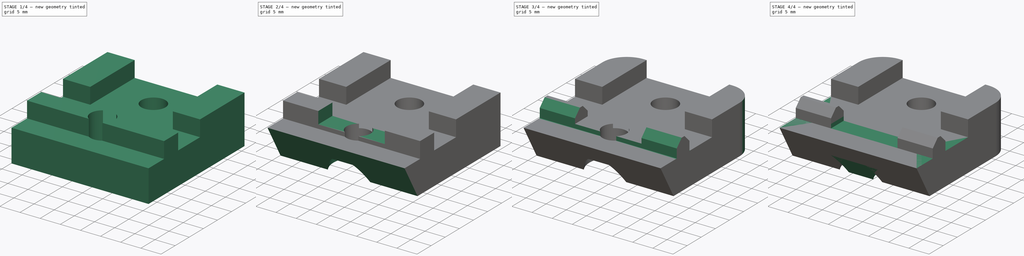
[diagram: build sequence overview — one tinted view per stage of 4, left to right]
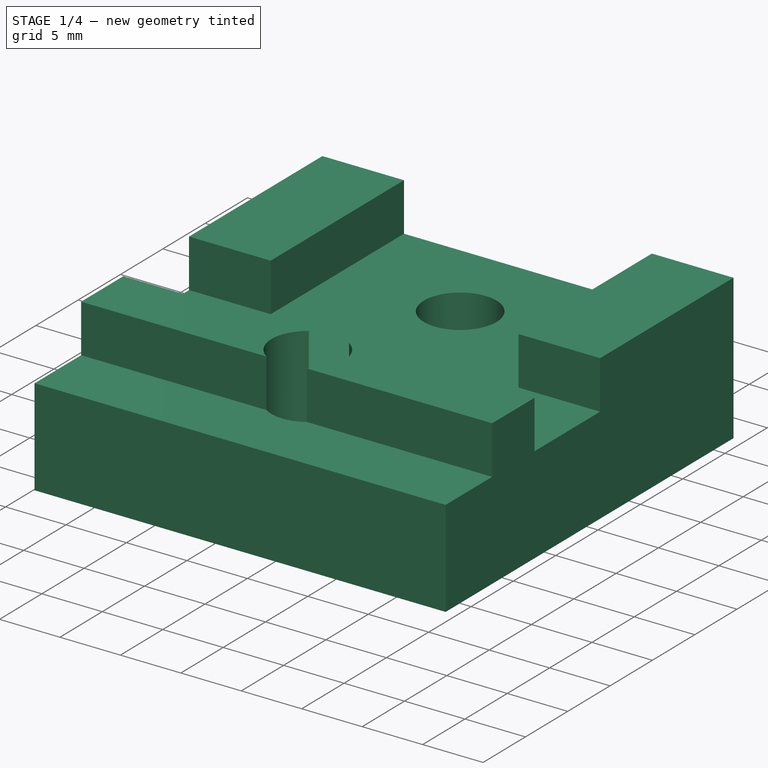
[diagram: stage 1 of 4 — iso view after this stage's code; geometry added in this stage tinted green]
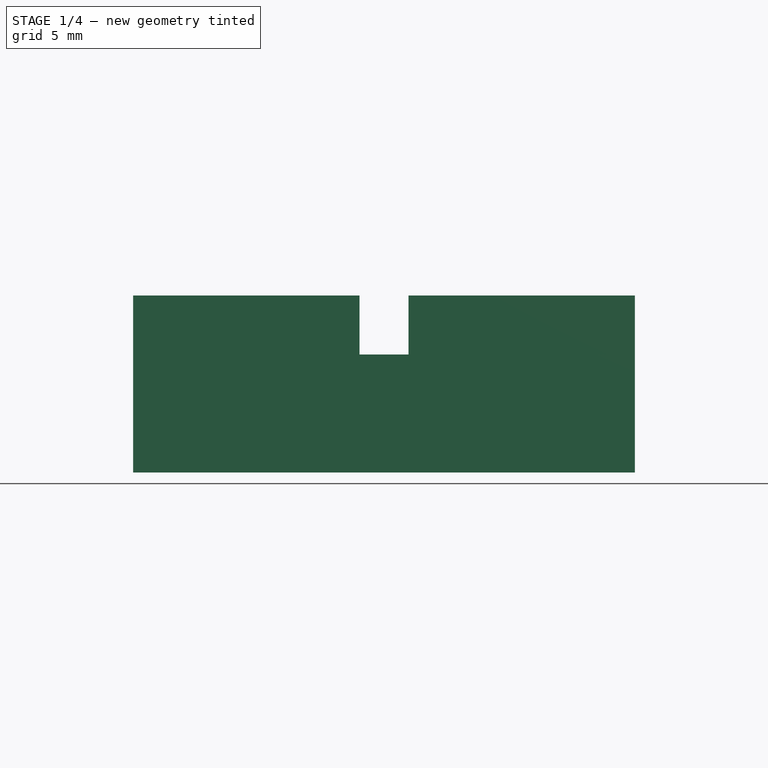
[diagram: stage 1 of 4 — front view after this stage's code; geometry added in this stage tinted green]
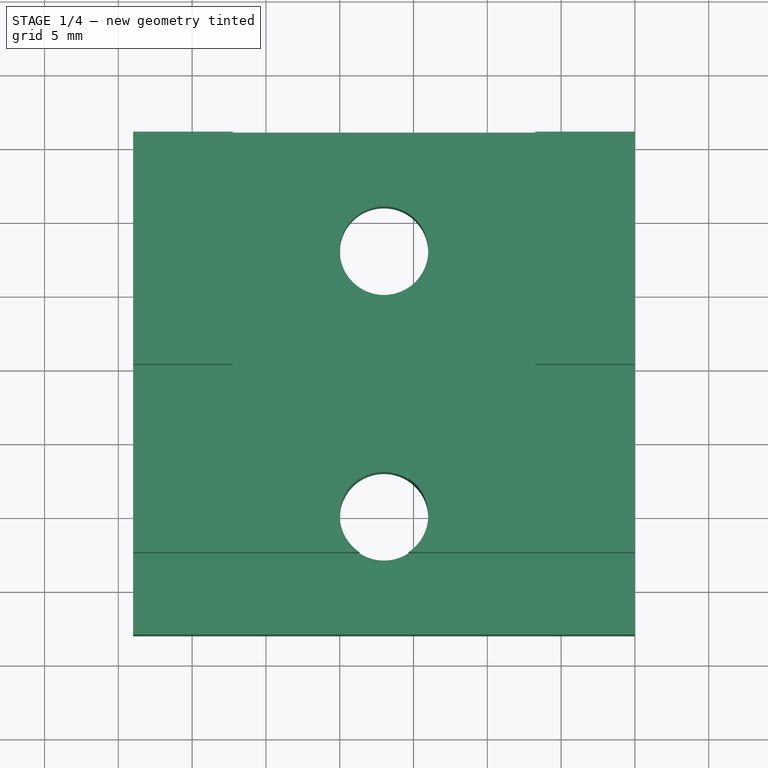
[diagram: stage 1 of 4 — top view after this stage's code; geometry added in this stage tinted green]
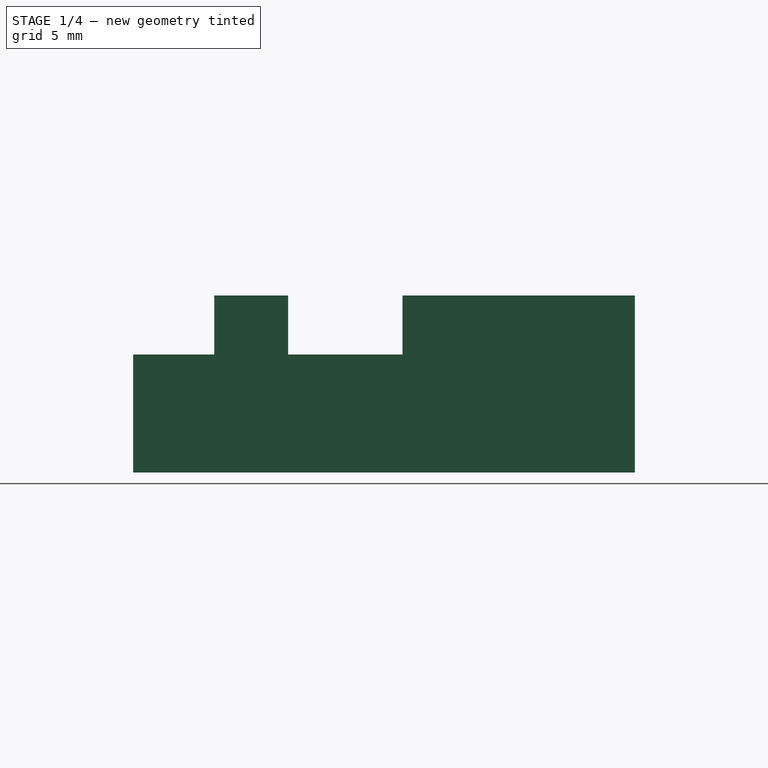
[diagram: stage 1 of 4 — right view after this stage's code; geometry added in this stage tinted green]
FCSTD DOCUMENT  (FreeCAD 0.17R13662 (Git))
Label: bed_mount_table_v1.1
License: CreativeCommons Attribution-ShareAlike
LicenseURL: http://creativecommons.org/licenses/by-sa/4.0/
objects: PartDesign::Pocket×9, Sketcher::SketchObject×8, Part::FeaturePython×1, PartDesign::Pad×1, PartDesign::Chamfer×1, PartDesign::Fillet×1, PartDesign::Body×1, Part::Feature×1
note: 33 computed .brp shape members not serialized (recipe doc carries the construction recipe); baked Part::Feature solids carry a one-line shape summary decoded from their .brp

FEATURE [Sketcher::SketchObject] Sketch
  MapMode = 5
  Support = -> [XY_Plane]
  sketch-geometry (4):
    g0: LineSegment StartX=0 StartY=2 StartZ=0 EndX=-34 EndY=2 EndZ=0
    g1: LineSegment StartX=-34 StartY=2 StartZ=0 EndX=-34 EndY=36 EndZ=0
    g2: LineSegment StartX=-34 StartY=36 StartZ=0 EndX=0 EndY=36 EndZ=0
    g3: LineSegment StartX=0 StartY=36 StartZ=0 EndX=0 EndY=2 EndZ=0
  constraints (12):
    c: Coincident(g0,g1)
    c: Coincident(g1,g2)
    c: Coincident(g2,g3)
    c: Coincident(g3,g0)
    c: Horizontal(g0)
    c: Horizontal(g2)
    c: Vertical(g1)
    c: Vertical(g3)
    c: PointOnObject(g0,g-2)
    c: DistanceY(g0) = 2
    c: DistanceY(g3,g3) = 34
    c: DistanceX(g2,g2) = 34
FEATURE [PartDesign::Pad] Pad
  Length = 12
  Length2 = 100
  Profile = -> Sketch
  Type = 0
FEATURE [Sketcher::SketchObject] Sketch001
  ExternalGeometry = -> [Pad]
  MapMode = 5
  Placement = pos=(0,0,12) rot=(0,0,1;0rad)
  Support = -> [Pad]
  sketch-geometry (14):
    g0: LineSegment StartX=-34 StartY=12.5 StartZ=0 EndX=0 EndY=12.5 EndZ=0
    g1: LineSegment [constr] StartX=0 StartY=12.5 StartZ=0 EndX=0 EndY=7.5 EndZ=0
    g2: LineSegment StartX=0 StartY=7.5 StartZ=0 EndX=-34 EndY=7.5 EndZ=0
    g3: LineSegment [constr] StartX=-34 StartY=7.5 StartZ=0 EndX=-34 EndY=12.5 EndZ=0
    g4: LineSegment StartX=-34 StartY=12.5 StartZ=0 EndX=-34 EndY=20.25 EndZ=0
    g5: LineSegment StartX=-34 StartY=20.25 StartZ=0 EndX=-27.25 EndY=20.25 EndZ=0
    g6: LineSegment StartX=-27.25 StartY=20.25 StartZ=0 EndX=-27.25 EndY=36 EndZ=0
    g7: LineSegment StartX=-27.25 StartY=36 StartZ=0 EndX=-6.75 EndY=36 EndZ=0
    g8: LineSegment StartX=-6.75 StartY=36 StartZ=0 EndX=-6.75 EndY=20.25 EndZ=0
    g9: LineSegment StartX=-6.75 StartY=20.25 StartZ=0 EndX=0 EndY=20.25 EndZ=0
    g10: LineSegment StartX=0 StartY=20.25 StartZ=0 EndX=0 EndY=12.5 EndZ=0
    g11: LineSegment StartX=0 StartY=7.5 StartZ=0 EndX=0 EndY=2 EndZ=0
    g12: LineSegment StartX=0 StartY=2 StartZ=0 EndX=-34 EndY=2 EndZ=0
    g13: LineSegment StartX=-34 StartY=2 StartZ=0 EndX=-34 EndY=7.5 EndZ=0
  constraints (40):
    c: Coincident(g0,g1)
    c: Coincident(g1,g2)
    c: Coincident(g2,g3)
    c: Coincident(g3,g0)
    c: Horizontal(g0)
    c: Horizontal(g2)
    c: Vertical(g1)
    c: Vertical(g3)
    c: DistanceY(g1,g1) = 5
    c: PointOnObject(g1,g-2)
    c: DistanceY(g1) = 7.5
    c: DistanceX(g0,g0) = 34
    c: Coincident(g4,g5)
    c: Coincident(g5,g6)
    c: Coincident(g6,g7)
    c: Coincident(g7,g8)
    c: Coincident(g8,g9)
    c: Coincident(g9,g10)
    c: Coincident(g11,g12)
    c: Coincident(g12,g13)
    c: Coincident(g2,g13)
    c: Vertical(g13)
    c: Vertical(g11)
    c: Vertical(g10)
    c: Vertical(g4)
    c: Horizontal(g12)
    c: Horizontal(g7)
    c: Horizontal(g5)
    c: Horizontal(g9)
    c: Vertical(g8)
    c: Vertical(g6)
    c: Coincident(g12,g-3)
    c: Coincident(g0,g4)
    c: DistanceY(g4,g4) = 7.75
    c: Equal(g5,g9)
    c: Coincident(g0,g10)
    c: DistanceX(g5,g5) = 6.75
    c: PointOnObject(g6,g-4)
    c: Equal(g8,g6)
    c: Coincident(g1,g11)
FEATURE [PartDesign::Pocket] Pocket
  BaseFeature = -> Pad
  Length = 4
  Length2 = 100
  Profile = -> Sketch001
  Type = 0
FEATURE [Sketcher::SketchObject] Sketch002
  MapMode = 5
  Placement = pos=(0,0,12) rot=(0,0,1;0rad)
  Support = -> [Pocket]
  sketch-geometry (2):
    g0: Circle CenterX=-17 CenterY=28 CenterZ=0 NormalX=0 NormalY=0 NormalZ=1 AngleXU=0 Radius=3
    g1: Circle CenterX=-17 CenterY=10 CenterZ=0 NormalX=0 NormalY=0 NormalZ=1 AngleXU=0 Radius=3
  constraints (6):
    c: DistanceX(g0) = -17
    c: DistanceY(g0) = 28
    c: Radius(g0) = 3
    c: DistanceX(g1,g0) = 0
    c: DistanceY(g1,g0) = 18
    c: Equal(g1,g0)
FEATURE [PartDesign::Pocket] Pocket001
  BaseFeature = -> Pocket
  Length = 5
  Length2 = 100
  Profile = -> Sketch002
  Type = 1
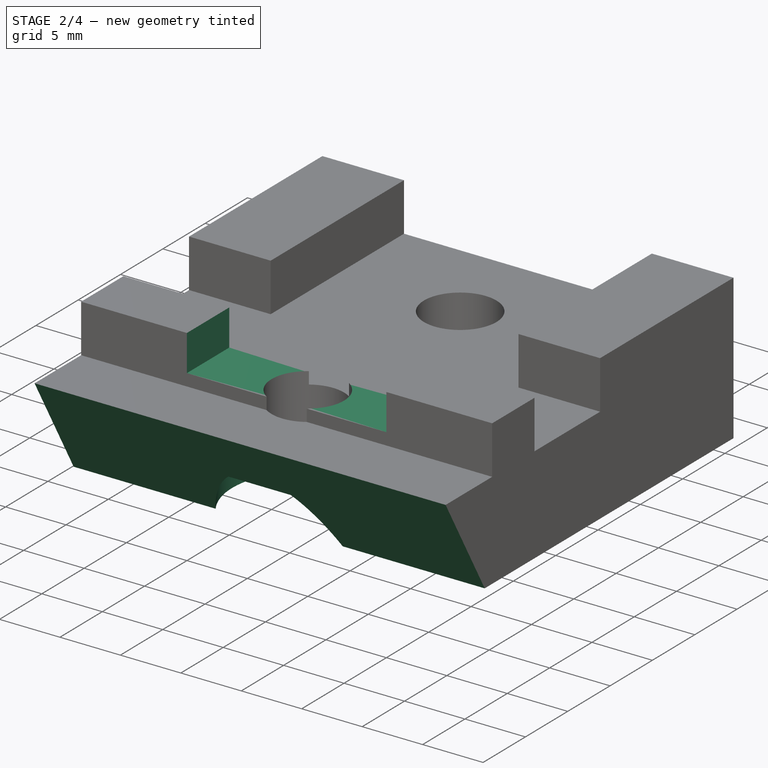
[diagram: stage 2 of 4 — iso view after this stage's code; geometry added in this stage tinted green]
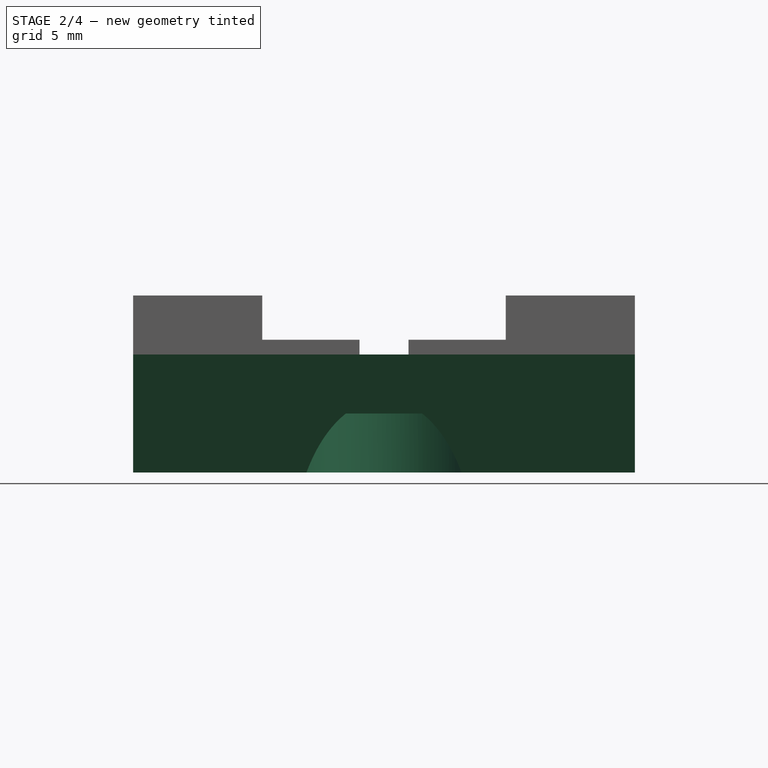
[diagram: stage 2 of 4 — front view after this stage's code; geometry added in this stage tinted green]
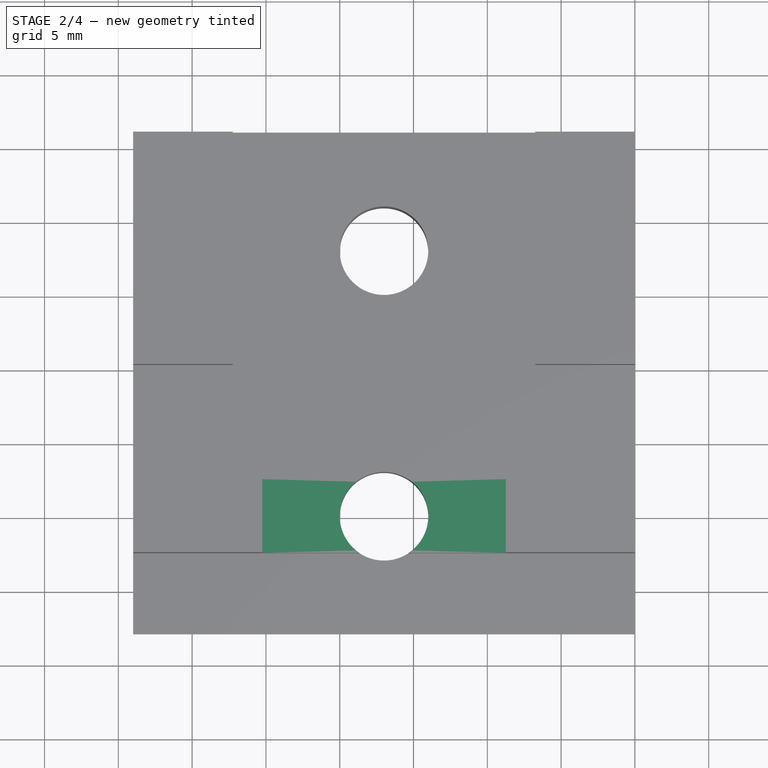
[diagram: stage 2 of 4 — top view after this stage's code; geometry added in this stage tinted green]
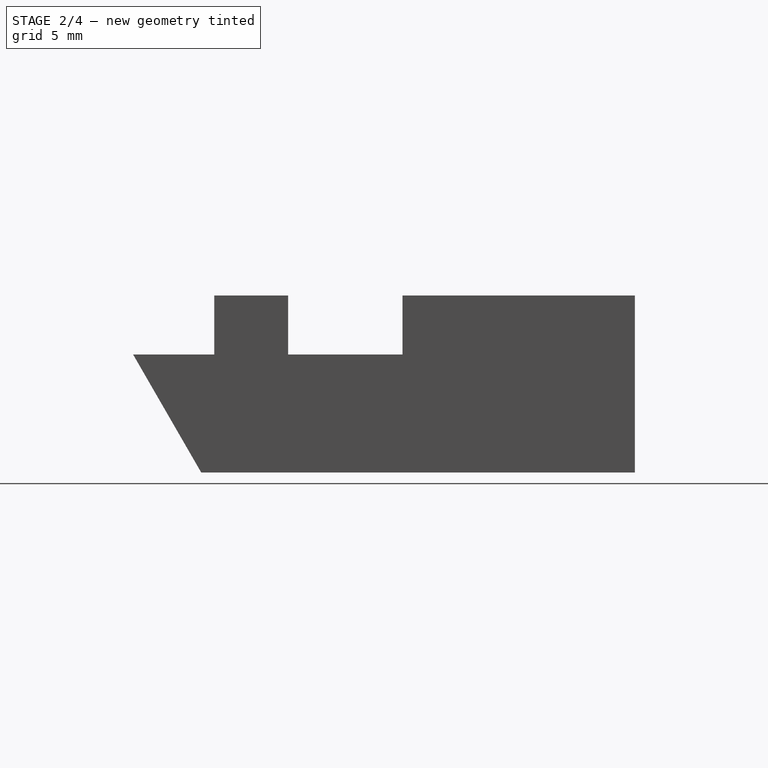
[diagram: stage 2 of 4 — right view after this stage's code; geometry added in this stage tinted green]
FEATURE [Sketcher::SketchObject] Sketch003
  ExternalGeometry = -> [Pocket001]
  MapMode = 5
  Placement = pos=(0,0,0) rot=(1,0,0;3.14159rad)
  Support = -> [Pocket001]
  sketch-geometry (1):
    g0: Circle CenterX=-17 CenterY=-10 CenterZ=0 NormalX=0 NormalY=0 NormalZ=1 AngleXU=0 Radius=6.25
  constraints (2):
    c: Coincident(g0,g-3)
    c: Radius(g0) = 6.25
FEATURE [PartDesign::Pocket] Pocket002
  BaseFeature = -> Pocket001
  Length = 4
  Length2 = 100
  Profile = -> Sketch003
  Type = 0
FEATURE [Sketcher::SketchObject] Sketch004
  ExternalGeometry = -> [Pocket002]
  MapMode = 5
  Placement = pos=(0,0,0) rot=(0.57735,0.57735,0.57735;2.0944rad)
  Support = -> [Pocket002]
  sketch-geometry (3):
    g0: LineSegment StartX=2 StartY=8 StartZ=0 EndX=6.6188 EndY=0 EndZ=0
    g1: LineSegment StartX=6.6188 StartY=0 StartZ=0 EndX=2 EndY=0 EndZ=0
    g2: LineSegment StartX=2 StartY=0 StartZ=0 EndX=2 EndY=8 EndZ=0
  constraints (7):
    c: Coincident(g0,g1)
    c: Coincident(g1,g2)
    c: Coincident(g0,g2)
    c: Coincident(g0,g-3)
    c: Coincident(g1,g-4)
    c: Horizontal(g1)
    c: Angle(g0) = -1.0472
FEATURE [PartDesign::Pocket] Pocket003
  BaseFeature = -> Pocket002
  Length = 5
  Length2 = 100
  Profile = -> Sketch004
  Type = 1
FEATURE [Sketcher::SketchObject] Sketch005
  ExternalGeometry = -> [Pocket003]
  MapMode = 5
  Placement = pos=(0,0,12) rot=(0,0,1;0rad)
  Support = -> [Pocket003]
  sketch-geometry (4):
    g0: LineSegment StartX=-25.25 StartY=12.5 StartZ=0 EndX=-8.75 EndY=12.5 EndZ=0
    g1: LineSegment StartX=-8.75 StartY=12.5 StartZ=0 EndX=-8.75 EndY=7.5 EndZ=0
    g2: LineSegment StartX=-8.75 StartY=7.5 StartZ=0 EndX=-25.25 EndY=7.5 EndZ=0
    g3: LineSegment StartX=-25.25 StartY=7.5 StartZ=0 EndX=-25.25 EndY=12.5 EndZ=0
  constraints (12):
    c: Coincident(g0,g1)
    c: Coincident(g1,g2)
    c: Coincident(g2,g3)
    c: Coincident(g3,g0)
    c: Horizontal(g0)
    c: Horizontal(g2)
    c: Vertical(g1)
    c: Vertical(g3)
    c: PointOnObject(g1,g-5)
    c: PointOnObject(g0,g-3)
    c: DistanceX(g0,g0) = 16.5
    c: DistanceX(g-7,g0) = 8.25
FEATURE [PartDesign::Pocket] Pocket004
  BaseFeature = -> Pocket003
  Length = 3
  Length2 = 100
  Profile = -> Sketch005
  Type = 0
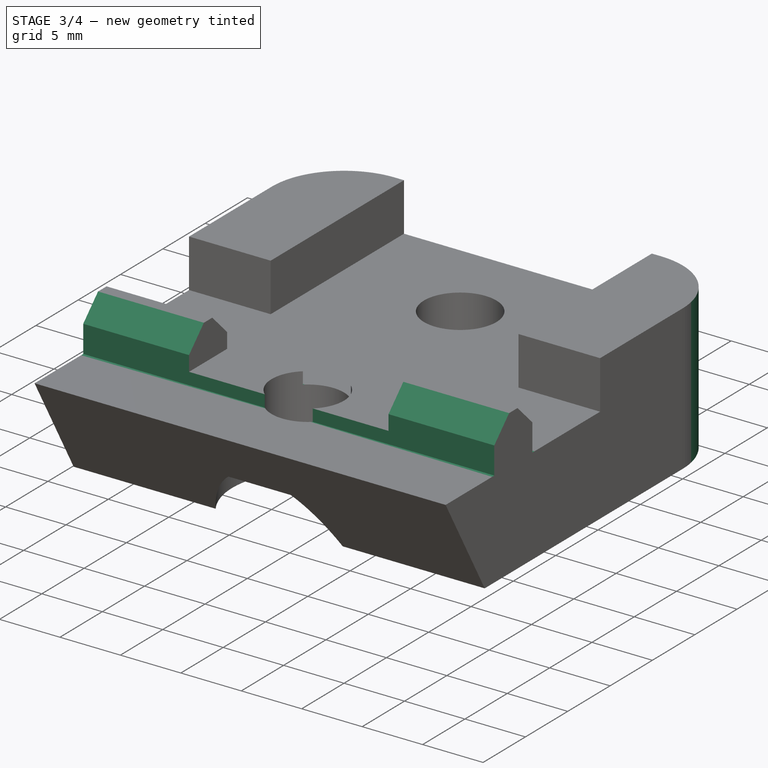
[diagram: stage 3 of 4 — iso view after this stage's code; geometry added in this stage tinted green]
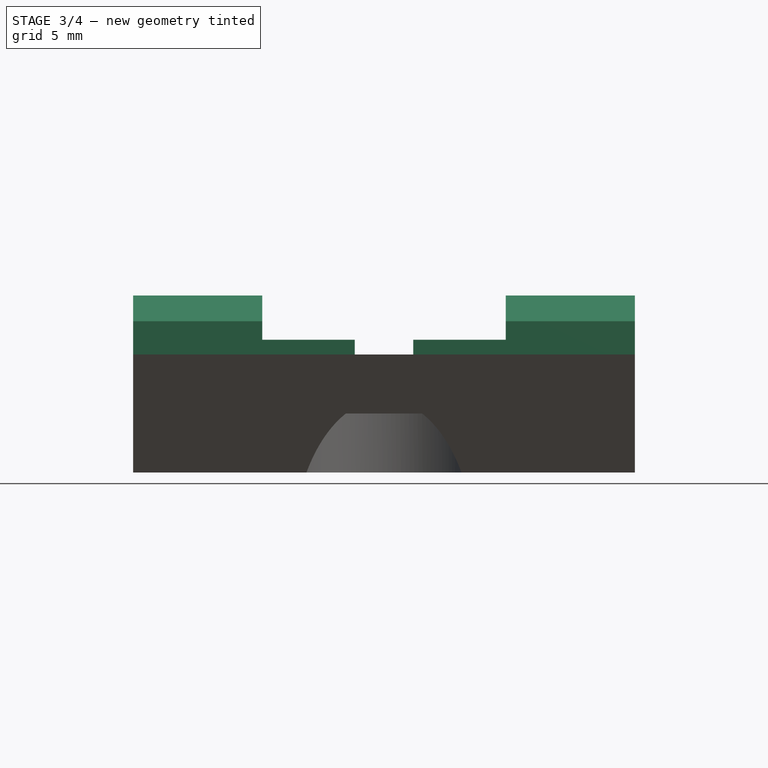
[diagram: stage 3 of 4 — front view after this stage's code; geometry added in this stage tinted green]
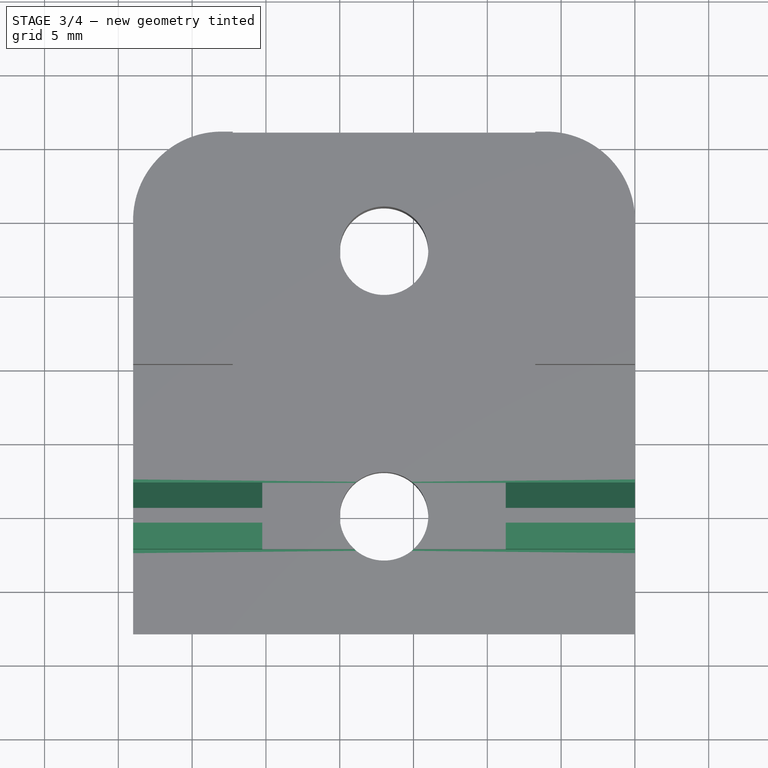
[diagram: stage 3 of 4 — top view after this stage's code; geometry added in this stage tinted green]
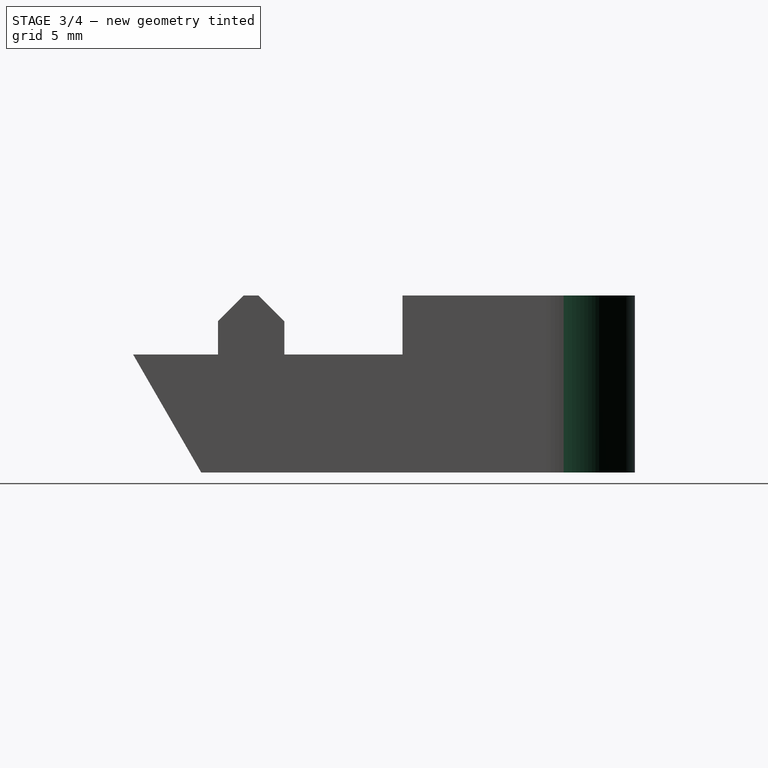
[diagram: stage 3 of 4 — right view after this stage's code; geometry added in this stage tinted green]
FEATURE [PartDesign::Chamfer] Chamfer
  Base = -> Pocket004 [Edge16,Edge51,Edge43,Edge73]
  BaseFeature = -> Pocket004
  Size = 2
FEATURE [PartDesign::Fillet] Fillet
  Base = -> Chamfer [Edge9,Edge48]
  BaseFeature = -> Chamfer
  Radius = 6
FEATURE [Sketcher::SketchObject] Sketch006
  ExternalGeometry = -> [Fillet]
  MapMode = 5
  Placement = pos=(0,7.5,0) rot=(1,0,0;1.5708rad)
  Support = -> [Fillet]
  sketch-geometry (4):
    g0: LineSegment StartX=-34 StartY=8 StartZ=0 EndX=0 EndY=8 EndZ=0
    g1: LineSegment StartX=0 StartY=8 StartZ=0 EndX=0 EndY=12 EndZ=0
    g2: LineSegment StartX=0 StartY=12 StartZ=0 EndX=-34 EndY=12 EndZ=0
    g3: LineSegment StartX=-34 StartY=12 StartZ=0 EndX=-34 EndY=8 EndZ=0
  constraints (11):
    c: Coincident(g0,g1)
    c: Coincident(g1,g2)
    c: Coincident(g2,g3)
    c: Coincident(g3,g0)
    c: Horizontal(g0)
    c: Horizontal(g2)
    c: Vertical(g1)
    c: Vertical(g3)
    c: Coincident(g0,g-3)
    c: Coincident(g-4,g0)
    c: Coincident(g1,g-5)
FEATURE [PartDesign::Pocket] Pocket005
  BaseFeature = -> Fillet
  Length = 0.25
  Length2 = 100
  Profile = -> Sketch006
  Type = 0
FEATURE [Sketcher::SketchObject] Sketch007
  ExternalGeometry = -> [Pocket005]
  MapMode = 5
  Placement = pos=(0,12.5,0) rot=(0,0.707107,0.707107;3.14159rad)
  Support = -> [Pocket005]
  sketch-geometry (4):
    g0: LineSegment StartX=0 StartY=8 StartZ=0 EndX=34 EndY=8 EndZ=0
    g1: LineSegment StartX=34 StartY=8 StartZ=0 EndX=34 EndY=12 EndZ=0
    g2: LineSegment StartX=34 StartY=12 StartZ=0 EndX=0 EndY=12 EndZ=0
    g3: LineSegment StartX=0 StartY=12 StartZ=0 EndX=0 EndY=8 EndZ=0
  constraints (11):
    c: Coincident(g0,g1)
    c: Coincident(g1,g2)
    c: Coincident(g2,g3)
    c: Coincident(g3,g0)
    c: Horizontal(g0)
    c: Horizontal(g2)
    c: Vertical(g1)
    c: Vertical(g3)
    c: Coincident(g0,g-3)
    c: Coincident(g-5,g0)
    c: Coincident(g-6,g1)
FEATURE [PartDesign::Pocket] Pocket006
  BaseFeature = -> Pocket005
  Length = 0.25
  Length2 = 100
  Profile = -> Sketch007
  Type = 0
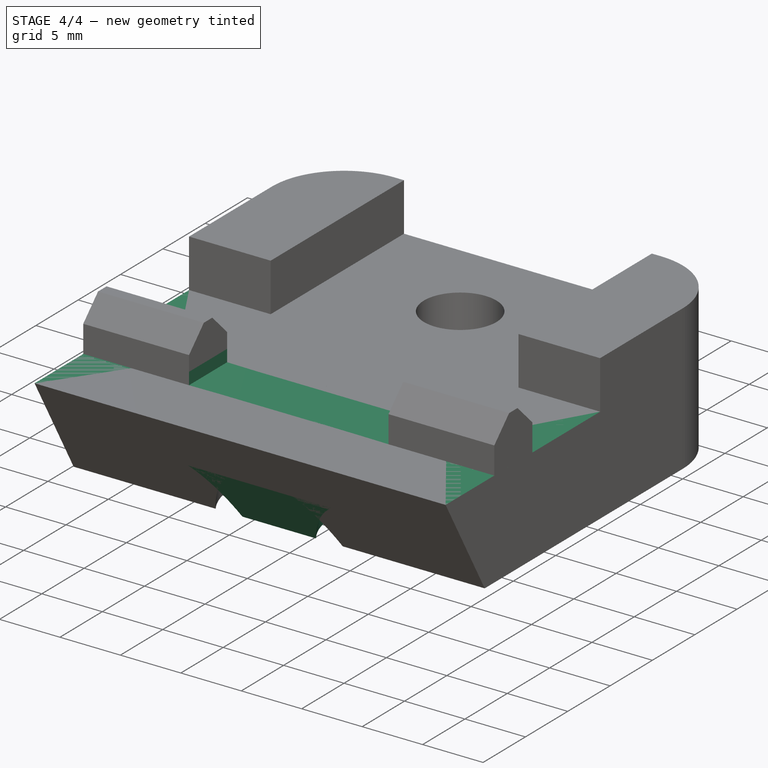
[diagram: stage 4 of 4 — iso view after this stage's code; geometry added in this stage tinted green]
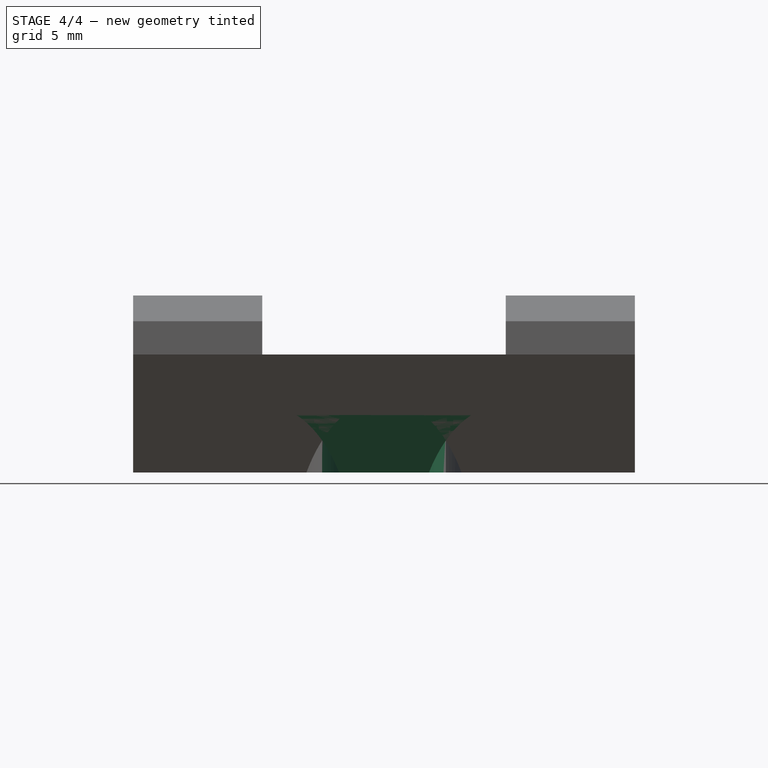
[diagram: stage 4 of 4 — front view after this stage's code; geometry added in this stage tinted green]
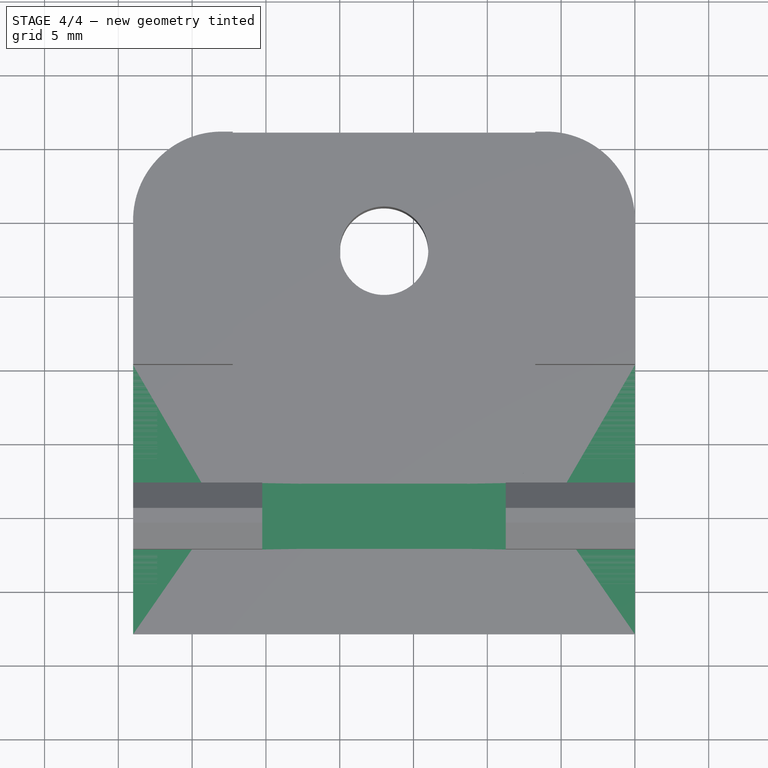
[diagram: stage 4 of 4 — top view after this stage's code; geometry added in this stage tinted green]
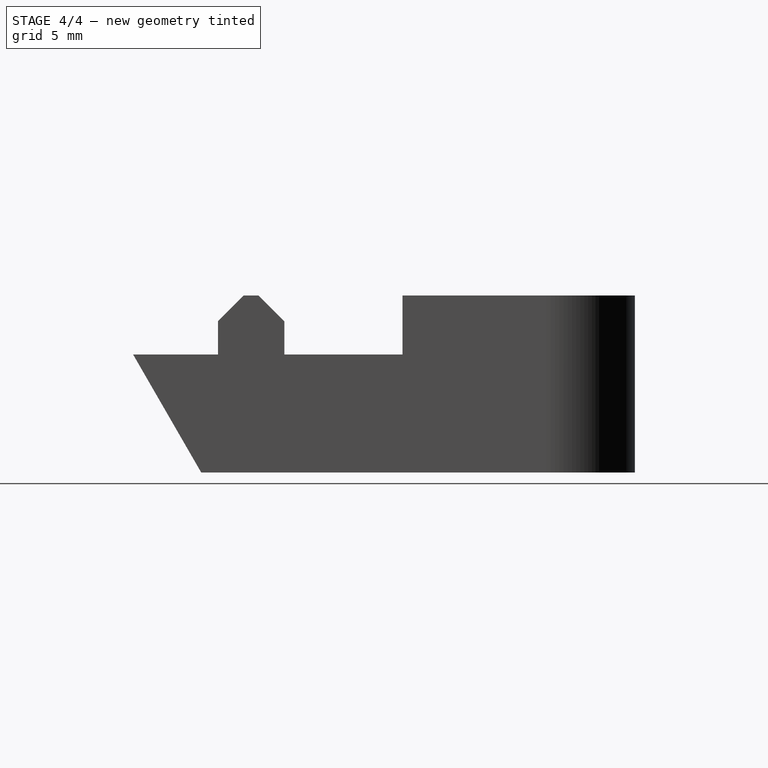
[diagram: stage 4 of 4 — right view after this stage's code; geometry added in this stage tinted green]
FEATURE [Part::FeaturePython] bed_mount_table_01  # a2plus imported part (geometry in sourceFile) (typed FeaturePython)
  Placement = pos=(0,0,4) rot=(0,0,1;0rad)
  fixedPosition = true
  sourceFile = <userpath>/Projects/taz-quiver/Production_parts/Printed_parts/Y/Bed_mount_table/bed_mount_table.fcstd
  timeLastImport = 1.53356e+09
  updateColors = true
FEATURE [PartDesign::Pocket] Pocket007
  BaseFeature = -> Pocket006
  Length = 1
  Length2 = 100
  Profile = -> Pocket006 [Face37]
  Type = 0
FEATURE [PartDesign::Pocket] Pocket008
  BaseFeature = -> Pocket007
  Length = 1
  Length2 = 100
  Profile = -> Pocket007 [Face25]
  Type = 0
FEATURE [PartDesign::Body] Body
  Group = -> [Sketch,Pad,Sketch001,Pocket,Sketch002,Pocket001,Sketch003,Pocket002,Sketch004,Pocket003,Sketch005,Pocket004,Chamfer,Fillet,Sketch006,Pocket005,Sketch007,Pocket006,Pocket007,Pocket008]
  Origin = -> Origin
  Tip = -> Pocket008
FEATURE [Part::Feature] Pocket008001  label="Pocket009"
  shape: bbox 34 x 34 x 12 mm, 30 faces (baked)
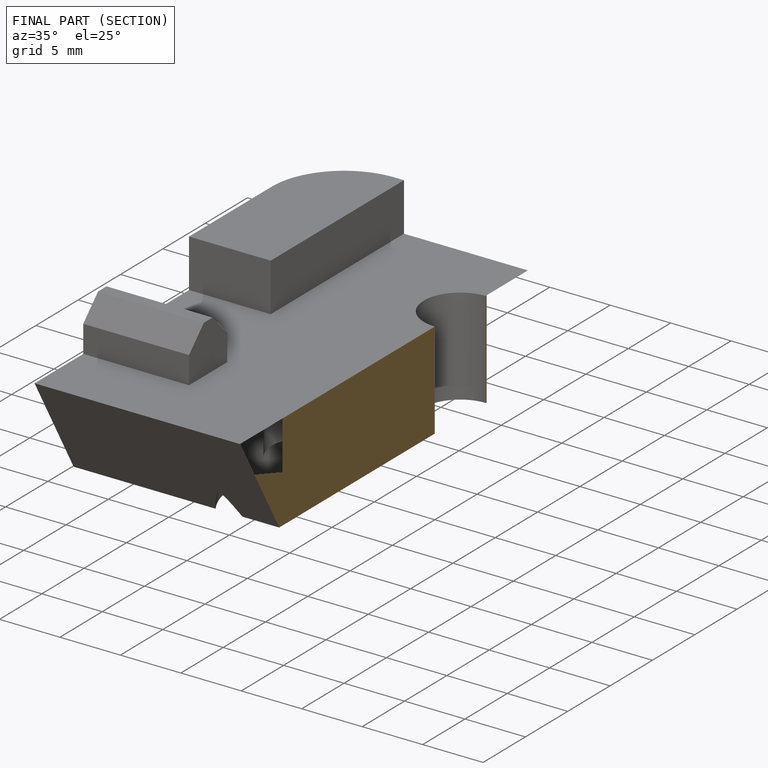
[diagram: finished part — half-section view (interior)]
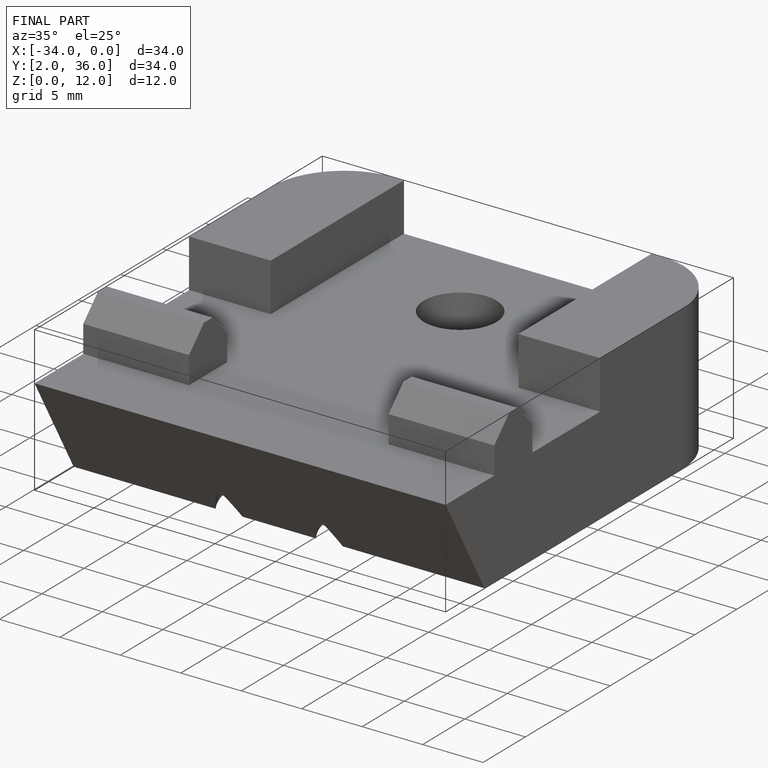
[diagram: finished part — iso view with bounding-box wireframe]
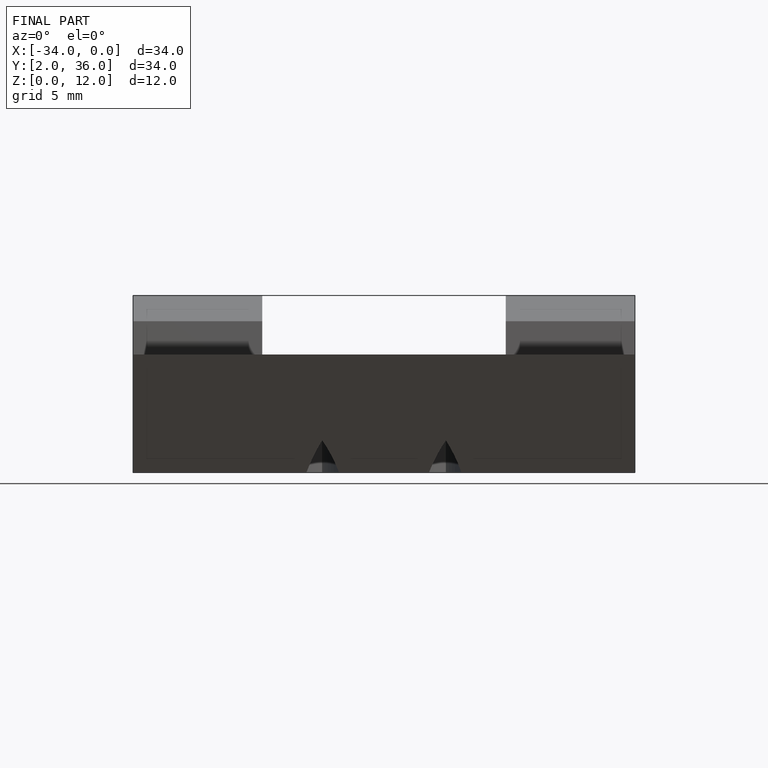
[diagram: finished part — front view with bounding-box wireframe]
